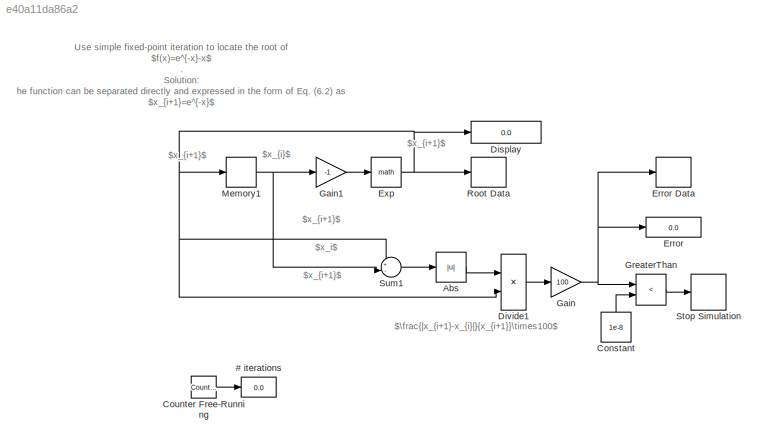
MODEL slx_e40a11da86a2
KIND model
CONFIG AbsTol = auto
CONFIG EnableMultiTasking = off
CONFIG FixedStep = 1
CONFIG MaxStep = auto
CONFIG MinStep = auto
CONFIG RelTol = 1e-3
CONFIG SampleTimeConstraint = Unconstrained
CONFIG SolverName = FixedStepDiscrete
CONFIG StartTime = 0.0
CONFIG StopTime = inf
BLOCK [Display] # iterations
  Decimation = 1
  Ports = [1]
BLOCK [Abs] Abs
  SaturateOnIntegerOverflow = off
BLOCK [Constant] Constant
  NameLocation = right
  Value = 1e-8
BLOCK [Reference] Counter Free-Running  REF=simulink/Sources/Counter
Free-Running
  Ports = [0, 1]
  SourceBlock = simulink/Sources/Counter\nFree-Running
  SourceProductBaseCode = SL
  SourceType = Counter Free-Running
BLOCK [Display] Display
  Decimation = 1
  Ports = [1]
BLOCK [Product] Divide1
  Inputs = */
  Ports = [2, 1]
BLOCK [Display] Error
  Decimation = 1
  Ports = [1]
BLOCK [Record] Error Data
  FileSettingsInternal = {"entries":[{"content":{"excelSettings":{"content":{},"type":"Streamout.ExcelSettings"}},"type":"Streamout.FileSettingStorage","uuid":"f0071751-1568-4622-84f8-59859e537be1"}],"packageUris":["http://schema.mathworks.com/mf0/streamout_blocks/R2020a"],"version":"1.0"}
  Ports = [1]
  SignalsInternal = {"entries":[{"content":{"signals":[{"content":{"blockPath":["fixed_point_iteration/Error Data"],"channel":[],"dimensions":[1],"domain":"fixed_point_iteration/error data","lineColor":"#fe330a","plots":[1],"port":1,"sid":[],"signalID":57,"signalName":"Gain"},"type":"RecordBlkView.Signal","uuid":"8546414e-9ac8-4ea8-800e-f1da5b08f58d"}]},"type":"RecordBlkView.InputSignals","uuid":"43f4dbdb-9b36-4694-8...<+110ch>
  VisualizationBindings = {"sparklinesplugin":{"info":[{"bindingParametersList":[],"subplotID":1}]}}
BLOCK [Math] Exp
  Ports = [1, 1]
  SignedPower = on
BLOCK [Gain] Gain
  Gain = 100
BLOCK [Gain] Gain1
  Gain = -1
BLOCK [RelationalOperator] GreaterThan
  InputSameDT = off
  Operator = <
  OutDataTypeStr = boolean
  Ports = [2, 1]
  RndMeth = Simplest
BLOCK [Memory] Memory1
BLOCK [Record] Root Data
  FileSettingsInternal = {"entries":[{"content":{"excelSettings":{"content":{},"type":"Streamout.ExcelSettings"}},"type":"Streamout.FileSettingStorage","uuid":"2d0c44c1-073e-486d-9f59-da843e532316"}],"packageUris":["http://schema.mathworks.com/mf0/streamout_blocks/R2020a"],"version":"1.0"}
  Ports = [1]
  SignalsInternal = {"entries":[{"content":{"signals":[{"content":{"blockPath":["fixed_point_iteration/Root Data"],"channel":[],"dimensions":[1],"domain":"fixed_point_iteration/root data","lineColor":"#b746ff","plots":[1],"port":1,"sid":[],"signalID":52,"signalName":"Exp"},"type":"RecordBlkView.Signal","uuid":"26e08dc8-8eea-4405-9480-7d72ecb15baf"}]},"type":"RecordBlkView.InputSignals","uuid":"88b60a22-ac91-400d-9303...<+107ch>
  VisualizationBindings = {"sparklinesplugin":{"info":[{"bindingParametersList":[],"subplotID":1}]}}
BLOCK [Stop] Stop Simulation
BLOCK [Sum] Sum1
  Inputs = +-|
  Ports = [2, 1]
ANNOTATION (root): Use simple fixed-point iteration to locate the root of $f(x)=e^{-x}-x$ . Solution: he function can be separated directly and expressed in the form of Eq. (6.2) as $x_{i+1}=e^{-x}$
ANNOTATION (root): $\frac{|x_{i+1}-x_{i}|}{x_{i+1}}\times100$
ANNOTATION (root): $x_i$
ANNOTATION (root): $x_{i+1}$
ANNOTATION (root): $x_{i}$
LINE Abs:1 -> Divide1:1
LINE Constant:1 -> GreaterThan:2
LINE Counter Free-Running:1 -> # iterations:1
LINE Divide1:1 -> Gain:1
NET Exp:1 -> Display:1, Divide1:2, Memory1:1, Root Data:1, Sum1:1
LINE Gain1:1 -> Exp:1
NET Gain:1 -> Error Data:1, Error:1, GreaterThan:1
LINE GreaterThan:1 -> Stop Simulation:1
NET Memory1:1 -> Gain1:1, Sum1:2
LINE Sum1:1 -> Abs:1
note: NET lines group one-source signal fan-out (src -> all destinations, sorted); 1:1 wires keep LINE
